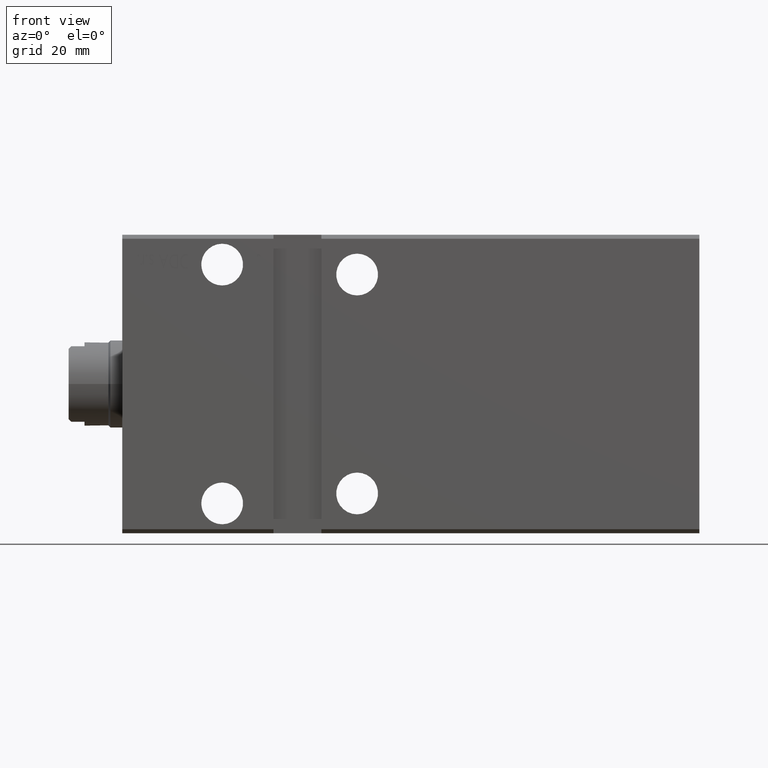
[diagram: clean part render]
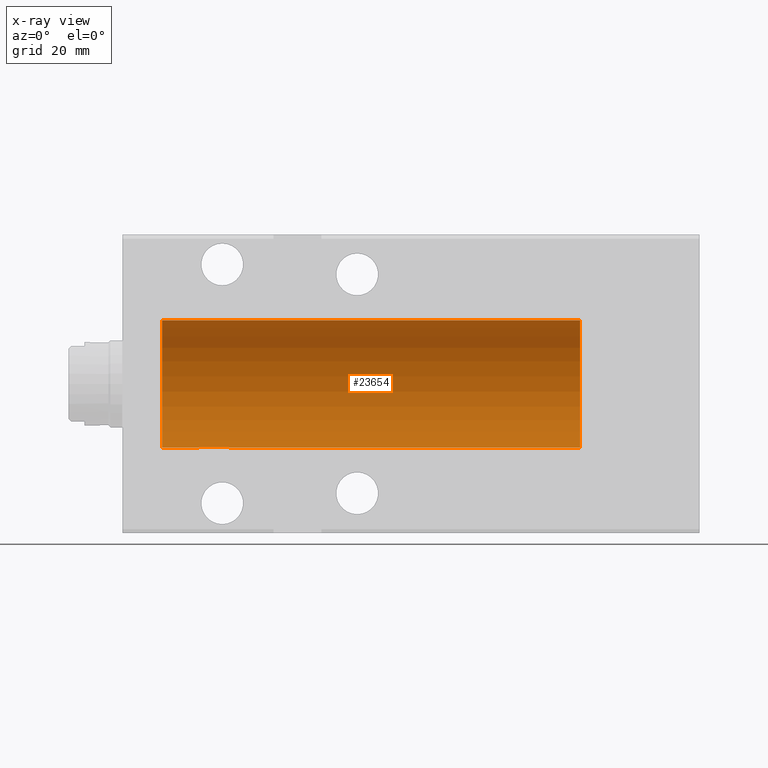
[diagram: x-ray — body ghosted, one internal face saturated and labeled with its STEP entity id]
A machine part, front view, then the same camera in x-ray: the body is ghosted and one INTERNAL B-rep face — a face not visible from any outside direction — is saturated and labeled: STEP entity #23654.
In plain terms, the highlighted cylindrical surface (partial cylindrical patch) has radius 16 mm, axis along (-1, -0, -0).
Its self-contained STEP definition (entity closure, byte-faithful):
#70 = DIRECTION ( 'NONE',  ( -1.000000000000000000, -0.000000000000000000, -0.000000000000000000 ) ) ;
#972 = DIRECTION ( 'NONE',  ( -1.000000000000000000, 0.000000000000000000, 0.000000000000000000 ) ) ;
#2680 = AXIS2_PLACEMENT_3D ( 'NONE', #3785, #972, #3386 ) ;
#3341 = VERTEX_POINT ( 'NONE', #7558 ) ;
#3349 = EDGE_LOOP ( 'NONE', ( #33215, #5469, #23657, #8748, #28374, #36811, #30430, #25217 ) ) ;
#3386 = DIRECTION ( 'NONE',  ( 0.000000000000000000, 0.000000000000000000, 1.000000000000000000 ) ) ;
#3783 = CARTESIAN_POINT ( 'NONE',  ( 19.28245879915401417, 1.508644848340497058, -15.93116189573794550 ) ) ;
#3785 = CARTESIAN_POINT ( 'NONE',  ( 114.9999999999999858, 0.000000000000000000, 0.000000000000000000 ) ) ;
#3868 = CYLINDRICAL_SURFACE ( 'NONE', #35474, 16.00000000000000000 ) ;
#4073 = VERTEX_POINT ( 'NONE', #22788 ) ;
#5182 = EDGE_CURVE ( 'NONE', #3341, #39380, #12971, .T. ) ;
#5469 = ORIENTED_EDGE ( 'NONE', *, *, #5182, .F. ) ;
#6144 = EDGE_CURVE ( 'NONE', #28629, #29363, #13980, .T. ) ;
#7338 = CARTESIAN_POINT ( 'NONE',  ( 19.17775111251208386, 1.219193417833760451, -15.95634149554536485 ) ) ;
#7558 = CARTESIAN_POINT ( 'NONE',  ( 114.9999999999999858, 0.000000000000000000, 16.00000000000000000 ) ) ;
#8534 = VERTEX_POINT ( 'NONE', #11666 ) ;
#8748 = ORIENTED_EDGE ( 'NONE', *, *, #10748, .T. ) ;
#9101 = EDGE_CURVE ( 'NONE', #39380, #29363, #13598, .T. ) ;
#9198 = B_SPLINE_CURVE_WITH_KNOTS ( 'NONE', 3,
 ( #31163, #24968, #25164, #7338, #3783, #34355 ),
 .UNSPECIFIED., .F., .F.,
 ( 4, 2, 4 ),
 ( 0.001845745242563113023, 0.002767447188281244030, 0.003689149133999374171 ),
 .UNSPECIFIED. ) ;
#10040 = DIRECTION ( 'NONE',  ( -1.000000000000000000, -0.000000000000000000, -0.000000000000000000 ) ) ;
#10574 = CARTESIAN_POINT ( 'NONE',  ( 114.9999999999999858, 1.959434878635765131E-15, -16.00000000000000000 ) ) ;
#10710 = CARTESIAN_POINT ( 'NONE',  ( 114.9999999999999858, 1.959434878635765131E-15, -16.00000000000000000 ) ) ;
#10748 = EDGE_CURVE ( 'NONE', #26119, #8534, #17373, .T. ) ;
#10933 = CARTESIAN_POINT ( 'NONE',  ( 26.71770615202116161, 1.508314300261687002, -15.93119902641381991 ) ) ;
#11666 = CARTESIAN_POINT ( 'NONE',  ( 10.00000000000000000, 1.959434878635765131E-15, -16.00000000000000000 ) ) ;
#11833 = LINE ( 'NONE', #24036, #37459 ) ;
#12055 = CARTESIAN_POINT ( 'NONE',  ( 10.00000000000000000, 0.000000000000000000, 0.000000000000000000 ) ) ;
#12058 = LINE ( 'NONE', #30458, #34232 ) ;
#12474 = EDGE_CURVE ( 'NONE', #14393, #8534, #27603, .T. ) ;
#12971 = CIRCLE ( 'NONE', #2680, 16.00000000000000000 ) ;
#13135 = VECTOR ( 'NONE', #19736, 1000.000000000000000 ) ;
#13598 = LINE ( 'NONE', #10574, #14072 ) ;
#13980 = B_SPLINE_CURVE_WITH_KNOTS ( 'NONE', 3,
 ( #19769, #10933, #22947, #19569, #31951, #17361 ),
 .UNSPECIFIED., .F., .F.,
 ( 4, 2, 4 ),
 ( 0.000000000000000000, 0.0009228726212815549935, 0.001845745242563109553 ),
 .UNSPECIFIED. ) ;
#14072 = VECTOR ( 'NONE', #28210, 1000.000000000000000 ) ;
#14393 = VERTEX_POINT ( 'NONE', #33546 ) ;
#14860 = DIRECTION ( 'NONE',  ( 0.000000000000000000, 0.000000000000000000, 1.000000000000000000 ) ) ;
#15020 = CARTESIAN_POINT ( 'NONE',  ( 26.57910603363460922, 1.786057109949259036, -15.89999999999998970 ) ) ;
#15669 = DIRECTION ( 'NONE',  ( 0.000000000000000000, 0.000000000000000000, 1.000000000000000000 ) ) ;
#17361 = CARTESIAN_POINT ( 'NONE',  ( 27.00000000000000000, 1.959432167375458166E-15, -16.00000000000000000 ) ) ;
#17373 = CIRCLE ( 'NONE', #23084, 16.00000000000000000 ) ;
#19569 = CARTESIAN_POINT ( 'NONE',  ( 26.96356619788477360, 0.6204082509210441243, -15.99078302721733102 ) ) ;
#19736 = DIRECTION ( 'NONE',  ( -1.000000000000000000, -0.000000000000000000, -0.000000000000000000 ) ) ;
#19769 = CARTESIAN_POINT ( 'NONE',  ( 26.57910603363460922, 1.786057109949259036, -15.89999999999998970 ) ) ;
#20124 = DIRECTION ( 'NONE',  ( -1.000000000000000000, 0.000000000000000000, 0.000000000000000000 ) ) ;
#20792 = CARTESIAN_POINT ( 'NONE',  ( 10.00000000000000000, 0.000000000000000000, 16.00000000000000000 ) ) ;
#21462 = FACE_OUTER_BOUND ( 'NONE', #3349, .T. ) ;
#22788 = CARTESIAN_POINT ( 'NONE',  ( 19.42089396636538723, 1.786057109949259036, -15.89999999999998970 ) ) ;
#22947 = CARTESIAN_POINT ( 'NONE',  ( 26.82196254941095148, 1.219576022118253888, -15.95627408098855504 ) ) ;
#23084 = AXIS2_PLACEMENT_3D ( 'NONE', #12055, #20124, #14860 ) ;
#23654 = ADVANCED_FACE ( 'NONE', ( #21462 ), #3868, .F. ) ;
#23657 = ORIENTED_EDGE ( 'NONE', *, *, #37365, .T. ) ;
#24036 = CARTESIAN_POINT ( 'NONE',  ( 114.9999999999999858, 1.786057109949259036, -15.89999999999998970 ) ) ;
#24968 = CARTESIAN_POINT ( 'NONE',  ( 19.00000000000000000, 0.3073137169939992308, -16.00000000000000355 ) ) ;
#25164 = CARTESIAN_POINT ( 'NONE',  ( 19.03558494715525029, 0.6159808737045033844, -15.99099227927342959 ) ) ;
#25217 = ORIENTED_EDGE ( 'NONE', *, *, #6144, .T. ) ;
#25255 = CARTESIAN_POINT ( 'NONE',  ( 114.9999999999999858, 0.000000000000000000, 0.000000000000000000 ) ) ;
#26119 = VERTEX_POINT ( 'NONE', #20792 ) ;
#27603 = LINE ( 'NONE', #10710, #13135 ) ;
#28210 = DIRECTION ( 'NONE',  ( -1.000000000000000000, -0.000000000000000000, -0.000000000000000000 ) ) ;
#28374 = ORIENTED_EDGE ( 'NONE', *, *, #12474, .F. ) ;
#28629 = VERTEX_POINT ( 'NONE', #15020 ) ;
#29363 = VERTEX_POINT ( 'NONE', #36836 ) ;
#30430 = ORIENTED_EDGE ( 'NONE', *, *, #33239, .F. ) ;
#30458 = CARTESIAN_POINT ( 'NONE',  ( 114.9999999999999858, 0.000000000000000000, 16.00000000000000000 ) ) ;
#31163 = CARTESIAN_POINT ( 'NONE',  ( 19.00000000000000000, 1.959437589885413797E-15, -16.00000000000000000 ) ) ;
#31951 = CARTESIAN_POINT ( 'NONE',  ( 26.99999999999999645, 0.3077040434552391068, -16.00000000000000355 ) ) ;
#33215 = ORIENTED_EDGE ( 'NONE', *, *, #9101, .F. ) ;
#33239 = EDGE_CURVE ( 'NONE', #28629, #4073, #11833, .T. ) ;
#33546 = CARTESIAN_POINT ( 'NONE',  ( 19.00000000000000000, 1.959437589885413797E-15, -16.00000000000000000 ) ) ;
#34232 = VECTOR ( 'NONE', #70, 1000.000000000000000 ) ;
#34355 = CARTESIAN_POINT ( 'NONE',  ( 19.42089396636538723, 1.786057109949259036, -15.89999999999998970 ) ) ;
#34665 = EDGE_CURVE ( 'NONE', #14393, #4073, #9198, .T. ) ;
#35474 = AXIS2_PLACEMENT_3D ( 'NONE', #25255, #10040, #15669 ) ;
#35883 = CARTESIAN_POINT ( 'NONE',  ( 114.9999999999999858, 1.959434878635765131E-15, -16.00000000000000000 ) ) ;
#36219 = DIRECTION ( 'NONE',  ( -1.000000000000000000, -0.000000000000000000, -0.000000000000000000 ) ) ;
#36811 = ORIENTED_EDGE ( 'NONE', *, *, #34665, .T. ) ;
#36836 = CARTESIAN_POINT ( 'NONE',  ( 27.00000000000000000, 1.959432167375458166E-15, -16.00000000000000000 ) ) ;
#37365 = EDGE_CURVE ( 'NONE', #3341, #26119, #12058, .T. ) ;
#37459 = VECTOR ( 'NONE', #36219, 1000.000000000000000 ) ;
#39380 = VERTEX_POINT ( 'NONE', #35883 ) ;